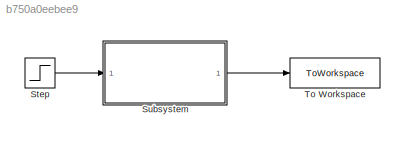
MODEL slx_b750a0eebee9
KIND model
CONFIG AbsTol = auto
CONFIG EnableMultiTasking = off
CONFIG FixedStep = auto
CONFIG MaxStep = auto
CONFIG MinStep = auto
CONFIG RelTol = 1e-3
CONFIG SampleTimeConstraint = Unconstrained
CONFIG SolverName = VariableStepAuto
CONFIG StartTime = 0.0
CONFIG StopTime = 10.0
BLOCK [Step] Step
  SampleTime = 0
  Time = 0
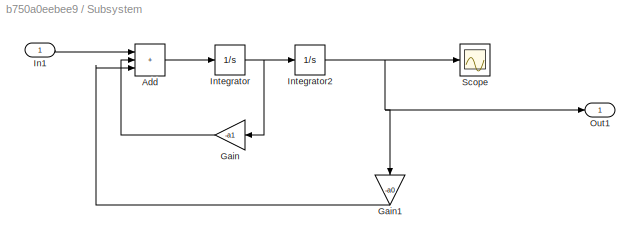
BLOCK [SubSystem] Subsystem
BLOCK [Sum] Subsystem/Add
  IconShape = rectangular
  Inputs = +++
BLOCK [Gain] Subsystem/Gain
  Gain = -a1
BLOCK [Gain] Subsystem/Gain1
  Gain = -a0
  NameLocation = left
BLOCK [Inport] Subsystem/In1
BLOCK [Integrator] Subsystem/Integrator
  InitialCondition = yd0
BLOCK [Integrator] Subsystem/Integrator2
  InitialCondition = y0
BLOCK [Outport] Subsystem/Out1
BLOCK [Scope] Subsystem/Scope
  Floating = off
  NumInputPorts = 1
  ScopeSpecificationString = Simulink.scopes.TimeScopeBlockCfg('CurrentConfiguration', extmgr.ConfigurationSet(extmgr.Configuration('Core','General UI',true),extmgr.Configuration('Core','Source UI',true),extmgr.Configuration('Sources','WiredSimulink',true),extmgr.Configuration('Visuals','Time Domain',true,'SerializedDisplays',{struct('MinYLimReal','-0.0625','MaxYLimReal','0.5625','YLabelReal','','MinYLimMag','0.00000','MaxYLi...<+1325ch>
BLOCK [ToWorkspace] To Workspace
  FixptAsFi = on
  MaxDataPoints = inf
  SampleTime = -1
  SaveFormat = Timeseries
  VariableName = y
LINE Step:1 -> Subsystem:1
LINE Subsystem/Add:1 -> Subsystem/Integrator:1
LINE Subsystem/Gain1:1 -> Subsystem/Add:3
LINE Subsystem/Gain:1 -> Subsystem/Add:2
LINE Subsystem/In1:1 -> Subsystem/Add:1
NET Subsystem/Integrator2:1 -> Subsystem/Gain1:1, Subsystem/Out1:1, Subsystem/Scope:1
NET Subsystem/Integrator:1 -> Subsystem/Gain:1, Subsystem/Integrator2:1
LINE Subsystem:1 -> To Workspace:1
note: NET lines group one-source signal fan-out (src -> all destinations, sorted); 1:1 wires keep LINE
